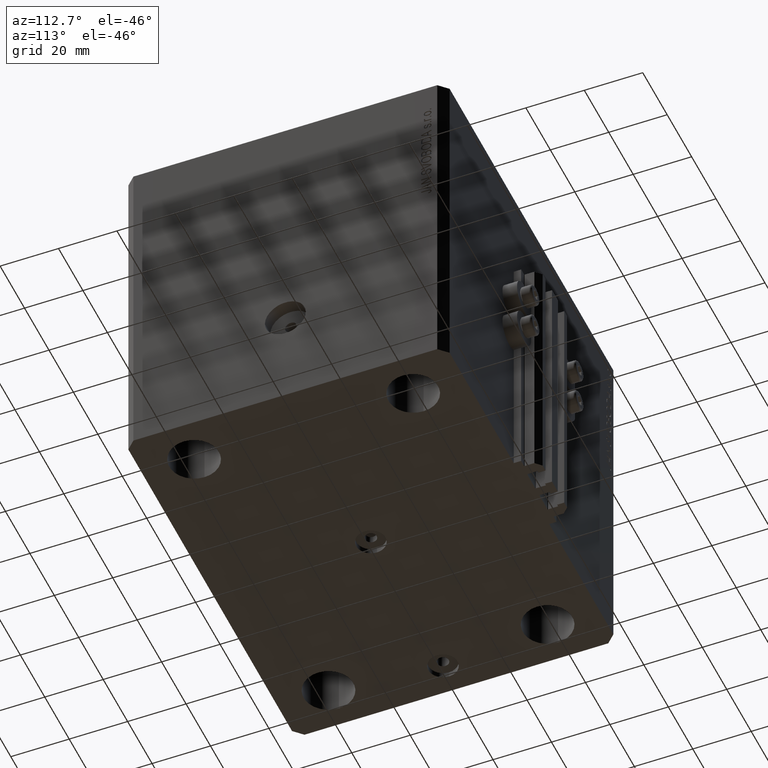
[diagram: clean part render]
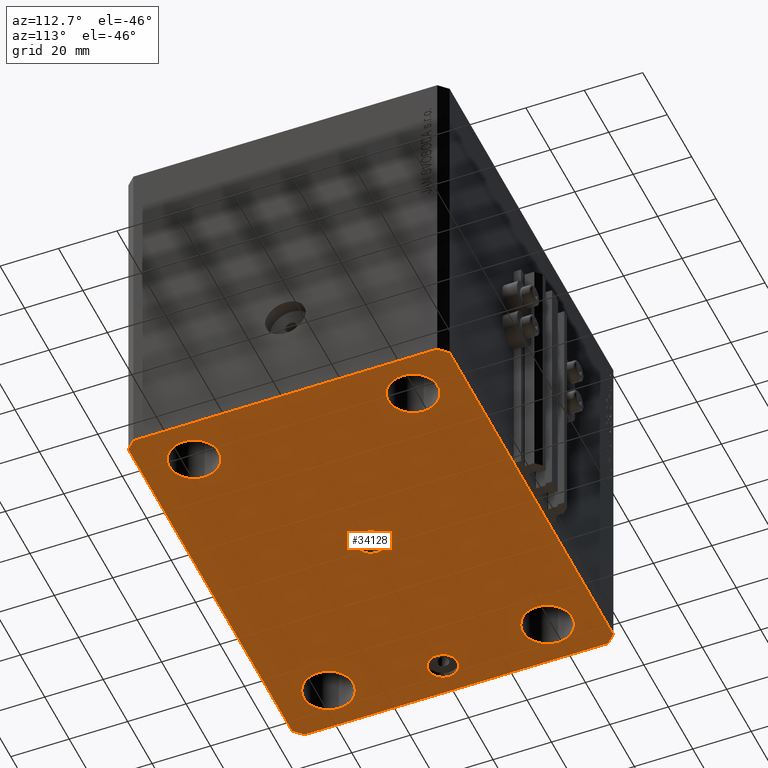
[diagram: same view with one face highlighted and labeled with its STEP entity id]
A machine part, auxiliary view. The second image highlights one B-rep face of the part: STEP entity #34128.
In plain terms, the highlighted planar face has unit normal (0, 0, 1).
Its self-contained STEP definition (entity closure, byte-faithful):
#424 = VECTOR ( 'NONE', #38864, 1000.000000000000000 ) ;
#659 = DIRECTION ( 'NONE',  ( 0.7071067811865483499, 0.7071067811865466846, 0.000000000000000000 ) ) ;
#920 = DIRECTION ( 'NONE',  ( 1.000000000000000000, 0.000000000000000000, 0.000000000000000000 ) ) ;
#1097 = DIRECTION ( 'NONE',  ( -0.000000000000000000, -0.000000000000000000, -1.000000000000000000 ) ) ;
#1430 = EDGE_CURVE ( 'NONE', #11630, #19936, #8192, .T. ) ;
#1649 = FACE_BOUND ( 'NONE', #45099, .T. ) ;
#1752 = VERTEX_POINT ( 'NONE', #4336 ) ;
#1755 = AXIS2_PLACEMENT_3D ( 'NONE', #42468, #35067, #42227 ) ;
#2123 = FACE_BOUND ( 'NONE', #19293, .T. ) ;
#2468 = LINE ( 'NONE', #45324, #424 ) ;
#2710 = LINE ( 'NONE', #46986, #39487 ) ;
#2758 = ORIENTED_EDGE ( 'NONE', *, *, #1430, .F. ) ;
#2824 = DIRECTION ( 'NONE',  ( 0.000000000000000000, 0.000000000000000000, -1.000000000000000000 ) ) ;
#2857 = AXIS2_PLACEMENT_3D ( 'NONE', #25223, #39829, #43890 ) ;
#2922 = CARTESIAN_POINT ( 'NONE',  ( 55.00000000000000711, 37.49999999999998579, -120.0000000000000000 ) ) ;
#3152 = DIRECTION ( 'NONE',  ( 1.000000000000000000, 0.000000000000000000, 0.000000000000000000 ) ) ;
#4275 = CARTESIAN_POINT ( 'NONE',  ( -54.99999999999998579, -37.50000000000000711, -120.0000000000000000 ) ) ;
#4336 = CARTESIAN_POINT ( 'NONE',  ( -64.00000000000000000, 0.000000000000000000, -120.0000000000000000 ) ) ;
#4363 = CARTESIAN_POINT ( 'NONE',  ( 63.49999999999998579, -37.50000000000000711, -120.0000000000000000 ) ) ;
#4395 = EDGE_CURVE ( 'NONE', #46598, #11185, #45489, .T. ) ;
#4752 = VERTEX_POINT ( 'NONE', #43217 ) ;
#4958 = CIRCLE ( 'NONE', #32482, 8.500000000000000000 ) ;
#5210 = CARTESIAN_POINT ( 'NONE',  ( -70.00000000000000000, 52.00000000000000711, -120.0000000000000000 ) ) ;
#5285 = CIRCLE ( 'NONE', #45817, 8.500000000000000000 ) ;
#5458 = DIRECTION ( 'NONE',  ( 0.000000000000000000, 0.000000000000000000, 1.000000000000000000 ) ) ;
#5887 = CIRCLE ( 'NONE', #11997, 5.000000000000000000 ) ;
#6742 = EDGE_CURVE ( 'NONE', #11578, #24942, #10162, .T. ) ;
#7696 = EDGE_CURVE ( 'NONE', #23698, #46598, #22052, .T. ) ;
#8044 = CIRCLE ( 'NONE', #34805, 8.500000000000000000 ) ;
#8192 = CIRCLE ( 'NONE', #2857, 8.500000000000000000 ) ;
#8621 = CARTESIAN_POINT ( 'NONE',  ( 46.49999999999998579, -37.50000000000000711, -120.0000000000000000 ) ) ;
#8623 = AXIS2_PLACEMENT_3D ( 'NONE', #2922, #20599, #3152 ) ;
#8783 = LINE ( 'NONE', #45874, #14966 ) ;
#8822 = DIRECTION ( 'NONE',  ( -0.000000000000000000, -0.000000000000000000, -1.000000000000000000 ) ) ;
#9177 = ORIENTED_EDGE ( 'NONE', *, *, #28001, .F. ) ;
#9214 = DIRECTION ( 'NONE',  ( -0.000000000000000000, -0.000000000000000000, -1.000000000000000000 ) ) ;
#9402 = CIRCLE ( 'NONE', #22418, 8.500000000000000000 ) ;
#10124 = ORIENTED_EDGE ( 'NONE', *, *, #22755, .F. ) ;
#10162 = CIRCLE ( 'NONE', #8623, 8.499999999999992895 ) ;
#10228 = VERTEX_POINT ( 'NONE', #33494 ) ;
#10262 = CIRCLE ( 'NONE', #23984, 8.500000000000000000 ) ;
#10316 = ORIENTED_EDGE ( 'NONE', *, *, #24637, .F. ) ;
#10474 = ORIENTED_EDGE ( 'NONE', *, *, #27077, .F. ) ;
#11185 = VERTEX_POINT ( 'NONE', #16601 ) ;
#11536 = ORIENTED_EDGE ( 'NONE', *, *, #24343, .F. ) ;
#11578 = VERTEX_POINT ( 'NONE', #32713 ) ;
#11630 = VERTEX_POINT ( 'NONE', #37937 ) ;
#11751 = CARTESIAN_POINT ( 'NONE',  ( 67.00000000000058265, 54.99999999999999289, -120.0000000000000000 ) ) ;
#11997 = AXIS2_PLACEMENT_3D ( 'NONE', #42867, #35943, #45980 ) ;
#13525 = ORIENTED_EDGE ( 'NONE', *, *, #4395, .F. ) ;
#13574 = DIRECTION ( 'NONE',  ( -1.000000000000000000, 0.000000000000000000, 0.000000000000000000 ) ) ;
#13807 = CARTESIAN_POINT ( 'NONE',  ( -59.00000000000000000, 0.000000000000000000, -120.0000000000000000 ) ) ;
#13928 = CARTESIAN_POINT ( 'NONE',  ( 0.000000000000000000, 0.000000000000000000, -120.0000000000000000 ) ) ;
#13937 = AXIS2_PLACEMENT_3D ( 'NONE', #13807, #2824, #13574 ) ;
#14080 = VECTOR ( 'NONE', #26125, 1000.000000000000000 ) ;
#14875 = CARTESIAN_POINT ( 'NONE',  ( -46.49999999999998579, -37.50000000000000711, -120.0000000000000000 ) ) ;
#14966 = VECTOR ( 'NONE', #31280, 1000.000000000000000 ) ;
#15683 = AXIS2_PLACEMENT_3D ( 'NONE', #13928, #24238, #24959 ) ;
#16507 = CARTESIAN_POINT ( 'NONE',  ( -70.00000000000000000, -52.00000000000000711, -120.0000000000000000 ) ) ;
#16601 = CARTESIAN_POINT ( 'NONE',  ( -67.00000000000000000, -55.00000000000000000, -120.0000000000000000 ) ) ;
#16827 = ORIENTED_EDGE ( 'NONE', *, *, #46112, .F. ) ;
#17279 = AXIS2_PLACEMENT_3D ( 'NONE', #23649, #5458, #41371 ) ;
#17363 = VERTEX_POINT ( 'NONE', #19350 ) ;
#17682 = EDGE_LOOP ( 'NONE', ( #11536, #45017, #31012, #45309, #25209, #13525, #23416, #38206 ) ) ;
#17801 = CIRCLE ( 'NONE', #1755, 8.499999999999992895 ) ;
#17887 = LINE ( 'NONE', #43979, #43276 ) ;
#18376 = ORIENTED_EDGE ( 'NONE', *, *, #22865, .F. ) ;
#18733 = ORIENTED_EDGE ( 'NONE', *, *, #21510, .F. ) ;
#19060 = ORIENTED_EDGE ( 'NONE', *, *, #27357, .F. ) ;
#19214 = DIRECTION ( 'NONE',  ( 5.070730160547592760E-15, 1.000000000000000000, 0.000000000000000000 ) ) ;
#19258 = CARTESIAN_POINT ( 'NONE',  ( 54.99999999999998579, -37.50000000000000711, -120.0000000000000000 ) ) ;
#19293 = EDGE_LOOP ( 'NONE', ( #44444, #2758 ) ) ;
#19350 = CARTESIAN_POINT ( 'NONE',  ( 67.00000000000000000, -55.00000000000000000, -120.0000000000000000 ) ) ;
#19577 = FACE_OUTER_BOUND ( 'NONE', #17682, .T. ) ;
#19891 = CARTESIAN_POINT ( 'NONE',  ( -46.50000000000000000, 37.50000000000000000, -120.0000000000000000 ) ) ;
#19936 = VERTEX_POINT ( 'NONE', #19891 ) ;
#20188 = DIRECTION ( 'NONE',  ( 1.000000000000000000, 0.000000000000000000, 0.000000000000000000 ) ) ;
#20275 = FACE_BOUND ( 'NONE', #42042, .T. ) ;
#20393 = VERTEX_POINT ( 'NONE', #43552 ) ;
#20416 = ORIENTED_EDGE ( 'NONE', *, *, #6742, .F. ) ;
#20599 = DIRECTION ( 'NONE',  ( -0.000000000000000000, -0.000000000000000000, -1.000000000000000000 ) ) ;
#21510 = EDGE_CURVE ( 'NONE', #1752, #20393, #36150, .T. ) ;
#22052 = LINE ( 'NONE', #36682, #44612 ) ;
#22118 = CARTESIAN_POINT ( 'NONE',  ( 70.00000000000054001, 51.99999999999995026, -120.0000000000000000 ) ) ;
#22418 = AXIS2_PLACEMENT_3D ( 'NONE', #4275, #40889, #920 ) ;
#22521 = DIRECTION ( 'NONE',  ( 0.000000000000000000, -1.000000000000000000, 0.000000000000000000 ) ) ;
#22587 = CARTESIAN_POINT ( 'NONE',  ( -63.49999999999998579, -37.50000000000000711, -120.0000000000000000 ) ) ;
#22755 = EDGE_CURVE ( 'NONE', #36349, #44205, #9402, .T. ) ;
#22843 = EDGE_LOOP ( 'NONE', ( #18376, #20416 ) ) ;
#22865 = EDGE_CURVE ( 'NONE', #24942, #11578, #17801, .T. ) ;
#23313 = VERTEX_POINT ( 'NONE', #34477 ) ;
#23359 = ORIENTED_EDGE ( 'NONE', *, *, #31958, .F. ) ;
#23416 = ORIENTED_EDGE ( 'NONE', *, *, #7696, .F. ) ;
#23649 = CARTESIAN_POINT ( 'NONE',  ( 0.000000000000000000, 0.000000000000000000, -120.0000000000000000 ) ) ;
#23698 = VERTEX_POINT ( 'NONE', #5210 ) ;
#23984 = AXIS2_PLACEMENT_3D ( 'NONE', #41600, #8822, #38030 ) ;
#24238 = DIRECTION ( 'NONE',  ( 0.000000000000000000, 0.000000000000000000, -1.000000000000000000 ) ) ;
#24284 = CARTESIAN_POINT ( 'NONE',  ( -55.00000000000000000, 37.50000000000000000, -120.0000000000000000 ) ) ;
#24343 = EDGE_CURVE ( 'NONE', #4752, #10228, #30650, .T. ) ;
#24637 = EDGE_CURVE ( 'NONE', #45424, #40397, #10262, .T. ) ;
#24942 = VERTEX_POINT ( 'NONE', #36585 ) ;
#24959 = DIRECTION ( 'NONE',  ( -1.000000000000000000, 0.000000000000000000, 0.000000000000000000 ) ) ;
#25209 = ORIENTED_EDGE ( 'NONE', *, *, #30003, .F. ) ;
#25223 = CARTESIAN_POINT ( 'NONE',  ( -55.00000000000000000, 37.50000000000000000, -120.0000000000000000 ) ) ;
#25717 = CARTESIAN_POINT ( 'NONE',  ( 70.00000000000000000, -52.00000000000000711, -120.0000000000000000 ) ) ;
#26125 = DIRECTION ( 'NONE',  ( -1.000000000000000000, 5.178279032766565695E-17, 0.000000000000000000 ) ) ;
#26520 = VECTOR ( 'NONE', #19214, 1000.000000000000000 ) ;
#26782 = FACE_BOUND ( 'NONE', #22843, .T. ) ;
#27077 = EDGE_CURVE ( 'NONE', #40397, #45424, #4958, .T. ) ;
#27347 = DIRECTION ( 'NONE',  ( 1.000000000000000000, 0.000000000000000000, 0.000000000000000000 ) ) ;
#27357 = EDGE_CURVE ( 'NONE', #44205, #36349, #8044, .T. ) ;
#27488 = CARTESIAN_POINT ( 'NONE',  ( -70.00000000000000000, -52.00000000000000711, -120.0000000000000000 ) ) ;
#28001 = EDGE_CURVE ( 'NONE', #36148, #23313, #46275, .T. ) ;
#28312 = CARTESIAN_POINT ( 'NONE',  ( -59.00000000000000000, 0.000000000000000000, -120.0000000000000000 ) ) ;
#28613 = EDGE_CURVE ( 'NONE', #10228, #23698, #2468, .T. ) ;
#30003 = EDGE_CURVE ( 'NONE', #11185, #17363, #8783, .T. ) ;
#30478 = CARTESIAN_POINT ( 'NONE',  ( -54.99999999999998579, -37.50000000000000711, -120.0000000000000000 ) ) ;
#30650 = LINE ( 'NONE', #11751, #14080 ) ;
#30897 = EDGE_CURVE ( 'NONE', #36300, #4752, #2710, .T. ) ;
#30941 = DIRECTION ( 'NONE',  ( -0.000000000000000000, -0.000000000000000000, -1.000000000000000000 ) ) ;
#31012 = ORIENTED_EDGE ( 'NONE', *, *, #36237, .F. ) ;
#31246 = CARTESIAN_POINT ( 'NONE',  ( -5.000000000000000000, 0.000000000000000000, -120.0000000000000000 ) ) ;
#31280 = DIRECTION ( 'NONE',  ( 1.000000000000000000, 0.000000000000000000, 0.000000000000000000 ) ) ;
#31369 = DIRECTION ( 'NONE',  ( 0.7071067811865483499, -0.7071067811865466846, 0.000000000000000000 ) ) ;
#31958 = EDGE_CURVE ( 'NONE', #23313, #36148, #5887, .T. ) ;
#32143 = DIRECTION ( 'NONE',  ( 0.000000000000000000, 0.000000000000000000, -1.000000000000000000 ) ) ;
#32482 = AXIS2_PLACEMENT_3D ( 'NONE', #19258, #1097, #40374 ) ;
#32713 = CARTESIAN_POINT ( 'NONE',  ( 46.50000000000001421, 37.49999999999998579, -120.0000000000000000 ) ) ;
#33268 = AXIS2_PLACEMENT_3D ( 'NONE', #28312, #32143, #40045 ) ;
#33494 = CARTESIAN_POINT ( 'NONE',  ( -67.00000000000000000, 55.00000000000000000, -120.0000000000000000 ) ) ;
#34128 = ADVANCED_FACE ( 'NONE', ( #20275, #41153, #1649, #34920, #26782, #2123, #19577 ), #34216, .F. ) ;
#34216 = PLANE ( 'NONE',  #17279 ) ;
#34361 = EDGE_CURVE ( 'NONE', #17363, #41080, #17887, .T. ) ;
#34477 = CARTESIAN_POINT ( 'NONE',  ( 5.000000000000000000, 6.123233995736765296E-16, -120.0000000000000000 ) ) ;
#34805 = AXIS2_PLACEMENT_3D ( 'NONE', #30478, #30941, #27347 ) ;
#34920 = FACE_BOUND ( 'NONE', #41267, .T. ) ;
#35067 = DIRECTION ( 'NONE',  ( -0.000000000000000000, -0.000000000000000000, -1.000000000000000000 ) ) ;
#35943 = DIRECTION ( 'NONE',  ( 0.000000000000000000, 0.000000000000000000, -1.000000000000000000 ) ) ;
#36148 = VERTEX_POINT ( 'NONE', #31246 ) ;
#36150 = CIRCLE ( 'NONE', #13937, 5.000000000000004441 ) ;
#36237 = EDGE_CURVE ( 'NONE', #41080, #36300, #37446, .T. ) ;
#36300 = VERTEX_POINT ( 'NONE', #22118 ) ;
#36349 = VERTEX_POINT ( 'NONE', #22587 ) ;
#36490 = VECTOR ( 'NONE', #31369, 1000.000000000000000 ) ;
#36585 = CARTESIAN_POINT ( 'NONE',  ( 63.50000000000000000, 37.49999999999998579, -120.0000000000000000 ) ) ;
#36682 = CARTESIAN_POINT ( 'NONE',  ( -70.00000000000000000, 52.00000000000000711, -120.0000000000000000 ) ) ;
#37098 = CIRCLE ( 'NONE', #33268, 5.000000000000004441 ) ;
#37446 = LINE ( 'NONE', #25717, #26520 ) ;
#37937 = CARTESIAN_POINT ( 'NONE',  ( -63.50000000000000000, 37.50000000000000000, -120.0000000000000000 ) ) ;
#38030 = DIRECTION ( 'NONE',  ( 1.000000000000000000, 0.000000000000000000, 0.000000000000000000 ) ) ;
#38206 = ORIENTED_EDGE ( 'NONE', *, *, #28613, .F. ) ;
#38864 = DIRECTION ( 'NONE',  ( -0.7071067811865483499, -0.7071067811865466846, 0.000000000000000000 ) ) ;
#39487 = VECTOR ( 'NONE', #42197, 1000.000000000000114 ) ;
#39829 = DIRECTION ( 'NONE',  ( -0.000000000000000000, -0.000000000000000000, -1.000000000000000000 ) ) ;
#40045 = DIRECTION ( 'NONE',  ( -1.000000000000000000, 0.000000000000000000, 0.000000000000000000 ) ) ;
#40374 = DIRECTION ( 'NONE',  ( 1.000000000000000000, 0.000000000000000000, 0.000000000000000000 ) ) ;
#40397 = VERTEX_POINT ( 'NONE', #8621 ) ;
#40889 = DIRECTION ( 'NONE',  ( -0.000000000000000000, -0.000000000000000000, -1.000000000000000000 ) ) ;
#41080 = VERTEX_POINT ( 'NONE', #46014 ) ;
#41153 = FACE_BOUND ( 'NONE', #46407, .T. ) ;
#41267 = EDGE_LOOP ( 'NONE', ( #10316, #10474 ) ) ;
#41371 = DIRECTION ( 'NONE',  ( 1.000000000000000000, 0.000000000000000000, -0.000000000000000000 ) ) ;
#41600 = CARTESIAN_POINT ( 'NONE',  ( 54.99999999999998579, -37.50000000000000711, -120.0000000000000000 ) ) ;
#42042 = EDGE_LOOP ( 'NONE', ( #9177, #23359 ) ) ;
#42197 = DIRECTION ( 'NONE',  ( -0.7071067811865361374, 0.7071067811865588970, 0.000000000000000000 ) ) ;
#42227 = DIRECTION ( 'NONE',  ( 1.000000000000000000, 0.000000000000000000, 0.000000000000000000 ) ) ;
#42468 = CARTESIAN_POINT ( 'NONE',  ( 55.00000000000000711, 37.49999999999998579, -120.0000000000000000 ) ) ;
#42693 = EDGE_CURVE ( 'NONE', #19936, #11630, #5285, .T. ) ;
#42867 = CARTESIAN_POINT ( 'NONE',  ( 0.000000000000000000, 0.000000000000000000, -120.0000000000000000 ) ) ;
#43217 = CARTESIAN_POINT ( 'NONE',  ( 67.00000000000058265, 54.99999999999999289, -120.0000000000000000 ) ) ;
#43276 = VECTOR ( 'NONE', #659, 1000.000000000000000 ) ;
#43552 = CARTESIAN_POINT ( 'NONE',  ( -53.99999999999999289, 6.123233995736770227E-16, -120.0000000000000000 ) ) ;
#43890 = DIRECTION ( 'NONE',  ( 1.000000000000000000, 0.000000000000000000, 0.000000000000000000 ) ) ;
#43979 = CARTESIAN_POINT ( 'NONE',  ( 67.00000000000000000, -55.00000000000000000, -120.0000000000000000 ) ) ;
#44205 = VERTEX_POINT ( 'NONE', #14875 ) ;
#44444 = ORIENTED_EDGE ( 'NONE', *, *, #42693, .F. ) ;
#44612 = VECTOR ( 'NONE', #22521, 1000.000000000000000 ) ;
#45017 = ORIENTED_EDGE ( 'NONE', *, *, #30897, .F. ) ;
#45099 = EDGE_LOOP ( 'NONE', ( #19060, #10124 ) ) ;
#45309 = ORIENTED_EDGE ( 'NONE', *, *, #34361, .F. ) ;
#45324 = CARTESIAN_POINT ( 'NONE',  ( -67.00000000000000000, 55.00000000000000000, -120.0000000000000000 ) ) ;
#45424 = VERTEX_POINT ( 'NONE', #4363 ) ;
#45489 = LINE ( 'NONE', #16507, #36490 ) ;
#45817 = AXIS2_PLACEMENT_3D ( 'NONE', #24284, #9214, #20188 ) ;
#45874 = CARTESIAN_POINT ( 'NONE',  ( -67.00000000000000000, -55.00000000000000000, -120.0000000000000000 ) ) ;
#45980 = DIRECTION ( 'NONE',  ( -1.000000000000000000, 0.000000000000000000, 0.000000000000000000 ) ) ;
#46014 = CARTESIAN_POINT ( 'NONE',  ( 70.00000000000000000, -52.00000000000000711, -120.0000000000000000 ) ) ;
#46112 = EDGE_CURVE ( 'NONE', #20393, #1752, #37098, .T. ) ;
#46275 = CIRCLE ( 'NONE', #15683, 5.000000000000000000 ) ;
#46407 = EDGE_LOOP ( 'NONE', ( #18733, #16827 ) ) ;
#46598 = VERTEX_POINT ( 'NONE', #27488 ) ;
#46986 = CARTESIAN_POINT ( 'NONE',  ( 70.00000000000054001, 51.99999999999995026, -120.0000000000000000 ) ) ;